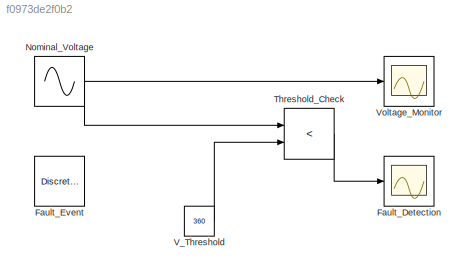
MODEL slx_f0973de2f0b2
KIND model
CONFIG AbsTol = auto
CONFIG EnableMultiTasking = off
CONFIG FixedStep = 0.01
CONFIG MaxStep = auto
CONFIG MinStep = auto
CONFIG RelTol = 1e-3
CONFIG SampleTimeConstraint = Unconstrained
CONFIG SolverName = ode4
CONFIG StartTime = 0.0
CONFIG StopTime = 10
BLOCK [Scope] Fault_Detection
  Floating = off
  NumInputPorts = 1
  Ports = [1]
BLOCK [DiscretePulseGenerator] Fault_Event
  Period = 5
  Ports = [0, 1]
  PulseType = Time based
  PulseWidth = 20
BLOCK [Sin] Nominal_Voltage
  Amplitude = 10
  Bias = 400
  Frequency = 0.5
  Ports = [0, 1]
  SampleTime = 0
BLOCK [RelationalOperator] Threshold_Check
  InputSameDT = off
  Operator = <
  OutDataTypeStr = boolean
  Ports = [2, 1]
  RndMeth = Simplest
BLOCK [Constant] V_Threshold
  Value = 360
BLOCK [Scope] Voltage_Monitor
  Floating = off
  NumInputPorts = 1
  Ports = [1]
NET Nominal_Voltage:1 -> Threshold_Check:1, Voltage_Monitor:1
LINE Threshold_Check:1 -> Fault_Detection:1
LINE V_Threshold:1 -> Threshold_Check:2
note: NET lines group one-source signal fan-out (src -> all destinations, sorted); 1:1 wires keep LINE
